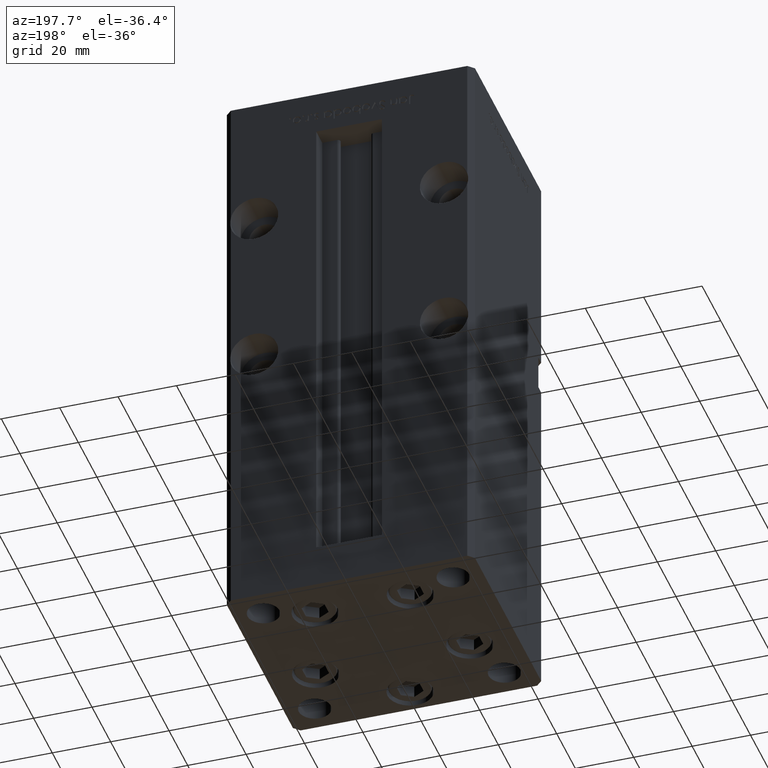
[diagram: clean part render]
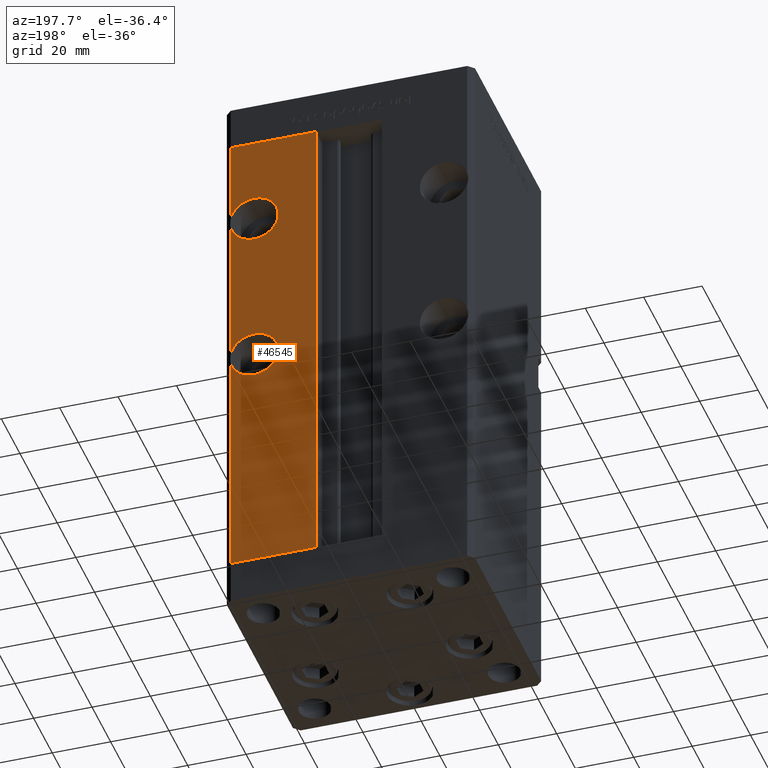
[diagram: same view with one face highlighted and labeled with its STEP entity id]
A machine part, auxiliary view. The second image highlights one B-rep face of the part: STEP entity #46545.
In plain terms, the highlighted planar face has unit normal (0, -1, 0).
Its self-contained STEP definition (entity closure, byte-faithful):
#62 = VERTEX_POINT ( 'NONE', #2086 ) ;
#400 = CARTESIAN_POINT ( 'NONE',  ( 32.50000000000000000, 37.50000000000000000, 91.25000000000001421 ) ) ;
#1348 = ORIENTED_EDGE ( 'NONE', *, *, #33796, .F. ) ;
#2086 = CARTESIAN_POINT ( 'NONE',  ( 40.50000000000000711, 37.50000000000000000, 168.5000000000000000 ) ) ;
#2183 = CIRCLE ( 'NONE', #6360, 8.249999999999992895 ) ;
#2592 = LINE ( 'NONE', #10951, #32834 ) ;
#3265 = VERTEX_POINT ( 'NONE', #33405 ) ;
#3709 = DIRECTION ( 'NONE',  ( -0.000000000000000000, -0.000000000000000000, -1.000000000000000000 ) ) ;
#3802 = EDGE_CURVE ( 'NONE', #51260, #62, #23065, .T. ) ;
#6360 = AXIS2_PLACEMENT_3D ( 'NONE', #27288, #24042, #37203 ) ;
#6621 = ORIENTED_EDGE ( 'NONE', *, *, #29056, .F. ) ;
#6901 = DIRECTION ( 'NONE',  ( -0.000000000000000000, -0.000000000000000000, -1.000000000000000000 ) ) ;
#6968 = LINE ( 'NONE', #36012, #10192 ) ;
#7035 = EDGE_LOOP ( 'NONE', ( #45513, #23714, #29559, #11480, #24295, #43095, #45218, #15599, #50504, #6621, #1348, #22348 ) ) ;
#7106 = DIRECTION ( 'NONE',  ( -0.000000000000000000, -0.000000000000000000, -1.000000000000000000 ) ) ;
#7571 = VERTEX_POINT ( 'NONE', #400 ) ;
#7804 = EDGE_CURVE ( 'NONE', #23030, #45169, #2183, .T. ) ;
#8157 = DIRECTION ( 'NONE',  ( 0.000000000000000000, 1.000000000000000000, -0.000000000000000000 ) ) ;
#8914 = CARTESIAN_POINT ( 'NONE',  ( 32.50000000000000000, 37.50000000000000000, 74.75000000000002842 ) ) ;
#9263 = CARTESIAN_POINT ( 'NONE',  ( 40.50000000000000711, 37.50000000000000000, 135.9844355629253698 ) ) ;
#9592 = VECTOR ( 'NONE', #24684, 1000.000000000000000 ) ;
#10057 = AXIS2_PLACEMENT_3D ( 'NONE', #35912, #31617, #11184 ) ;
#10192 = VECTOR ( 'NONE', #3709, 1000.000000000000000 ) ;
#10951 = CARTESIAN_POINT ( 'NONE',  ( 40.50000000000000711, 37.50000000000000000, 168.5000000000000000 ) ) ;
#11184 = DIRECTION ( 'NONE',  ( 0.000000000000000000, 0.000000000000000000, 1.000000000000000000 ) ) ;
#11480 = ORIENTED_EDGE ( 'NONE', *, *, #7804, .F. ) ;
#11908 = DIRECTION ( 'NONE',  ( 0.000000000000000000, 1.000000000000000000, -0.000000000000000000 ) ) ;
#12362 = CARTESIAN_POINT ( 'NONE',  ( 11.24999999999999822, 37.50000000000000000, 0.000000000000000000 ) ) ;
#13010 = CARTESIAN_POINT ( 'NONE',  ( 32.50000000000000000, 37.50000000000000000, 83.00000000000001421 ) ) ;
#13348 = EDGE_CURVE ( 'NONE', #23030, #22995, #13857, .T. ) ;
#13857 = LINE ( 'NONE', #31585, #15979 ) ;
#15428 = CARTESIAN_POINT ( 'NONE',  ( 32.50000000000000000, 37.50000000000000000, 83.00000000000001421 ) ) ;
#15599 = ORIENTED_EDGE ( 'NONE', *, *, #3802, .T. ) ;
#15979 = VECTOR ( 'NONE', #7106, 1000.000000000000000 ) ;
#16024 = VERTEX_POINT ( 'NONE', #34723 ) ;
#16611 = EDGE_CURVE ( 'NONE', #46203, #25956, #24670, .T. ) ;
#16617 = DIRECTION ( 'NONE',  ( 0.000000000000000000, 0.000000000000000000, 1.000000000000000000 ) ) ;
#16880 = CARTESIAN_POINT ( 'NONE',  ( 32.50000000000000000, 37.50000000000000000, 138.0000000000000000 ) ) ;
#18843 = DIRECTION ( 'NONE',  ( 0.000000000000000000, 1.000000000000000000, 0.000000000000000000 ) ) ;
#18884 = EDGE_CURVE ( 'NONE', #48260, #51260, #51441, .T. ) ;
#18937 = CARTESIAN_POINT ( 'NONE',  ( 40.50000000000000711, 37.50000000000000000, 140.0155644370746586 ) ) ;
#20751 = CARTESIAN_POINT ( 'NONE',  ( -11.24999999999999822, 37.50000000000000000, 168.5000000000000000 ) ) ;
#21208 = CARTESIAN_POINT ( 'NONE',  ( -11.24999999999999822, 37.50000000000000000, 0.000000000000000000 ) ) ;
#21568 = AXIS2_PLACEMENT_3D ( 'NONE', #15428, #11908, #44186 ) ;
#22348 = ORIENTED_EDGE ( 'NONE', *, *, #16611, .F. ) ;
#22702 = EDGE_CURVE ( 'NONE', #7571, #16024, #34413, .T. ) ;
#22882 = CARTESIAN_POINT ( 'NONE',  ( 32.50000000000000000, 37.50000000000000000, 138.0000000000000000 ) ) ;
#22995 = VERTEX_POINT ( 'NONE', #47028 ) ;
#23030 = VERTEX_POINT ( 'NONE', #26067 ) ;
#23065 = LINE ( 'NONE', #37808, #42422 ) ;
#23714 = ORIENTED_EDGE ( 'NONE', *, *, #22702, .F. ) ;
#24042 = DIRECTION ( 'NONE',  ( 0.000000000000000000, 1.000000000000000000, -0.000000000000000000 ) ) ;
#24295 = ORIENTED_EDGE ( 'NONE', *, *, #13348, .T. ) ;
#24670 = CIRCLE ( 'NONE', #10057, 8.250000000000007105 ) ;
#24684 = DIRECTION ( 'NONE',  ( -1.000000000000000000, 0.000000000000000000, 0.000000000000000000 ) ) ;
#25956 = VERTEX_POINT ( 'NONE', #48627 ) ;
#26067 = CARTESIAN_POINT ( 'NONE',  ( 40.50000000000000711, 37.50000000000000000, 80.98443556292542667 ) ) ;
#27288 = CARTESIAN_POINT ( 'NONE',  ( 32.50000000000000000, 37.50000000000000000, 83.00000000000001421 ) ) ;
#27336 = VECTOR ( 'NONE', #39859, 1000.000000000000000 ) ;
#27451 = AXIS2_PLACEMENT_3D ( 'NONE', #16880, #32752, #16617 ) ;
#27511 = CARTESIAN_POINT ( 'NONE',  ( 11.24999999999999822, 37.50000000000000000, 0.000000000000000000 ) ) ;
#28804 = DIRECTION ( 'NONE',  ( 0.000000000000000000, -1.000000000000000000, 0.000000000000000000 ) ) ;
#29056 = EDGE_CURVE ( 'NONE', #3265, #52684, #47380, .T. ) ;
#29559 = ORIENTED_EDGE ( 'NONE', *, *, #49508, .F. ) ;
#29588 = CIRCLE ( 'NONE', #37354, 8.249999999999992895 ) ;
#30740 = EDGE_CURVE ( 'NONE', #22995, #48260, #45126, .T. ) ;
#30934 = DIRECTION ( 'NONE',  ( 0.000000000000000000, 0.000000000000000000, 1.000000000000000000 ) ) ;
#31585 = CARTESIAN_POINT ( 'NONE',  ( 40.50000000000000711, 37.50000000000000000, 168.5000000000000000 ) ) ;
#31617 = DIRECTION ( 'NONE',  ( 0.000000000000000000, 1.000000000000000000, 0.000000000000000000 ) ) ;
#31796 = EDGE_CURVE ( 'NONE', #62, #52684, #2592, .T. ) ;
#32752 = DIRECTION ( 'NONE',  ( 0.000000000000000000, 1.000000000000000000, 0.000000000000000000 ) ) ;
#32834 = VECTOR ( 'NONE', #6901, 1000.000000000000000 ) ;
#33374 = FACE_OUTER_BOUND ( 'NONE', #7035, .T. ) ;
#33405 = CARTESIAN_POINT ( 'NONE',  ( 32.50000000000000000, 37.50000000000000000, 146.2500000000000284 ) ) ;
#33796 = EDGE_CURVE ( 'NONE', #25956, #3265, #36833, .T. ) ;
#34413 = CIRCLE ( 'NONE', #21568, 8.249999999999992895 ) ;
#34723 = CARTESIAN_POINT ( 'NONE',  ( 40.50000000000000711, 37.50000000000000000, 85.01556443707461597 ) ) ;
#35356 = EDGE_CURVE ( 'NONE', #46203, #16024, #6968, .T. ) ;
#35912 = CARTESIAN_POINT ( 'NONE',  ( 32.50000000000000000, 37.50000000000000000, 138.0000000000000000 ) ) ;
#36012 = CARTESIAN_POINT ( 'NONE',  ( 40.50000000000000711, 37.50000000000000000, 168.5000000000000000 ) ) ;
#36208 = AXIS2_PLACEMENT_3D ( 'NONE', #22882, #18843, #30934 ) ;
#36833 = CIRCLE ( 'NONE', #27451, 8.250000000000007105 ) ;
#37203 = DIRECTION ( 'NONE',  ( 0.000000000000000000, 0.000000000000000000, -1.000000000000000000 ) ) ;
#37297 = CARTESIAN_POINT ( 'NONE',  ( 11.24999999999999112, 37.50000000000000000, 168.5000000000000000 ) ) ;
#37354 = AXIS2_PLACEMENT_3D ( 'NONE', #13010, #8157, #37997 ) ;
#37808 = CARTESIAN_POINT ( 'NONE',  ( -11.24999999999999822, 37.50000000000000000, 168.5000000000000000 ) ) ;
#37931 = PLANE ( 'NONE',  #51021 ) ;
#37997 = DIRECTION ( 'NONE',  ( 0.000000000000000000, 0.000000000000000000, -1.000000000000000000 ) ) ;
#39859 = DIRECTION ( 'NONE',  ( -0.000000000000000000, -0.000000000000000000, 1.000000000000000000 ) ) ;
#42235 = DIRECTION ( 'NONE',  ( 0.000000000000000000, -0.000000000000000000, -1.000000000000000000 ) ) ;
#42422 = VECTOR ( 'NONE', #48854, 1000.000000000000000 ) ;
#43095 = ORIENTED_EDGE ( 'NONE', *, *, #30740, .T. ) ;
#44186 = DIRECTION ( 'NONE',  ( 0.000000000000000000, 0.000000000000000000, -1.000000000000000000 ) ) ;
#45126 = LINE ( 'NONE', #21208, #9592 ) ;
#45169 = VERTEX_POINT ( 'NONE', #8914 ) ;
#45218 = ORIENTED_EDGE ( 'NONE', *, *, #18884, .T. ) ;
#45513 = ORIENTED_EDGE ( 'NONE', *, *, #35356, .T. ) ;
#46203 = VERTEX_POINT ( 'NONE', #9263 ) ;
#46545 = ADVANCED_FACE ( 'NONE', ( #33374 ), #37931, .F. ) ;
#47028 = CARTESIAN_POINT ( 'NONE',  ( 40.50000000000000711, 37.50000000000000000, 0.000000000000000000 ) ) ;
#47380 = CIRCLE ( 'NONE', #36208, 8.250000000000007105 ) ;
#48260 = VERTEX_POINT ( 'NONE', #12362 ) ;
#48627 = CARTESIAN_POINT ( 'NONE',  ( 32.50000000000000000, 37.50000000000000000, 129.7500000000000000 ) ) ;
#48854 = DIRECTION ( 'NONE',  ( 1.000000000000000000, 0.000000000000000000, 0.000000000000000000 ) ) ;
#49508 = EDGE_CURVE ( 'NONE', #45169, #7571, #29588, .T. ) ;
#50504 = ORIENTED_EDGE ( 'NONE', *, *, #31796, .T. ) ;
#51021 = AXIS2_PLACEMENT_3D ( 'NONE', #20751, #28804, #42235 ) ;
#51260 = VERTEX_POINT ( 'NONE', #37297 ) ;
#51441 = LINE ( 'NONE', #27511, #27336 ) ;
#52684 = VERTEX_POINT ( 'NONE', #18937 ) ;